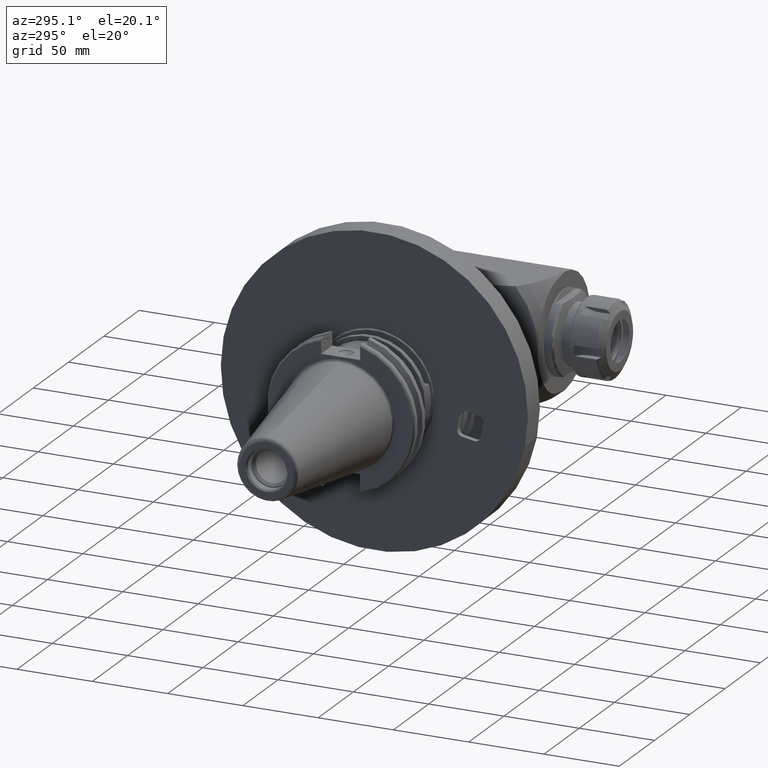
[diagram: clean part render]
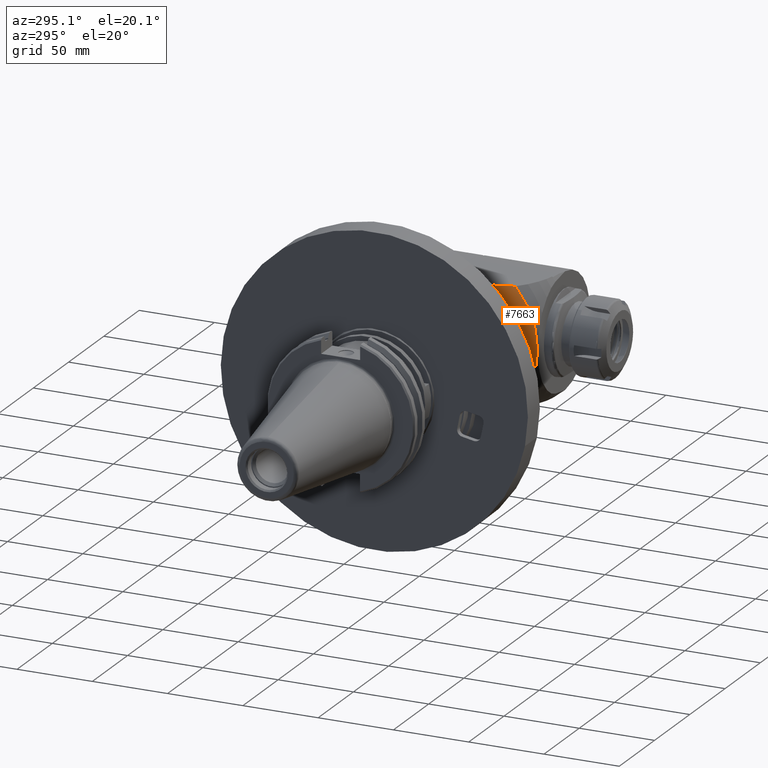
[diagram: same view with one face highlighted and labeled with its STEP entity id]
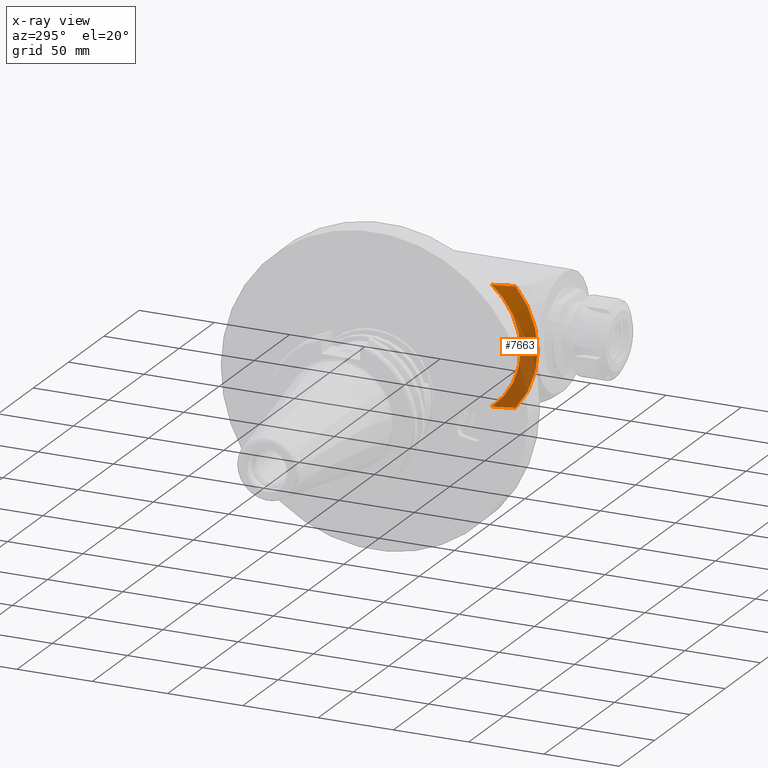
[diagram: x-ray of the same camera — body ghosted, the highlighted face saturated]
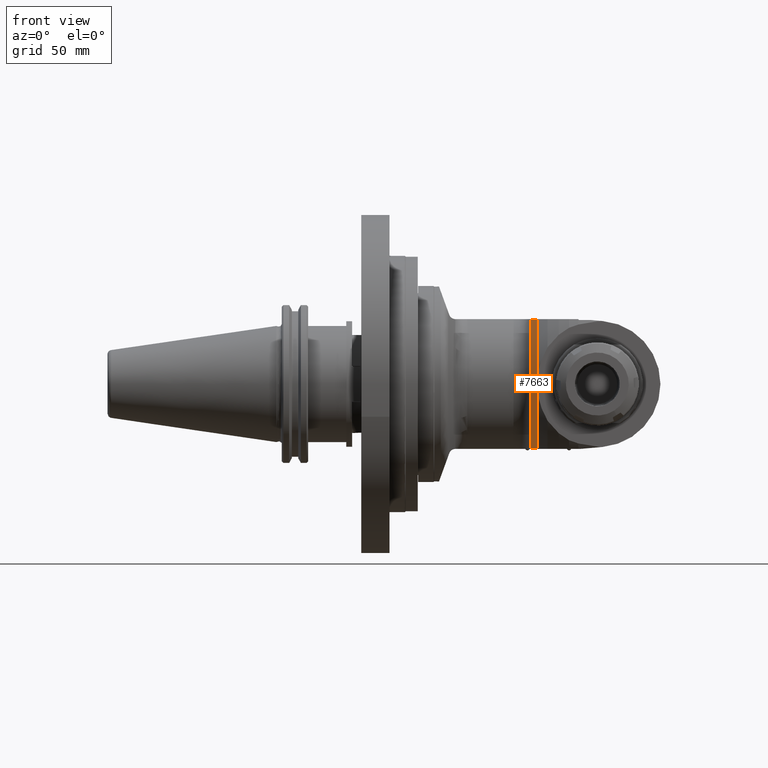
[diagram: same view with one face highlighted and labeled with its STEP entity id]
A machine part, auxiliary view. The second image highlights one B-rep face of the part: STEP entity #7663.
The next image is the same camera in x-ray: the body ghosted, the highlighted face saturated — about 53% of this face is hidden behind the body in this view.
A second angle (front view) of the same face is appended — the face is thin or edge-on in the first view.
In plain terms, the highlighted conical surface has half-angle 68 deg.
Its self-contained STEP definition (entity closure, byte-faithful):
#363=CONICAL_SURFACE('',#8274,54.18966373621,1.18682389135614);
#521=FACE_OUTER_BOUND('',#939,.T.);
#939=EDGE_LOOP('',(#5581,#5582,#5583,#5584,#5585));
#1439=CIRCLE('',#8273,49.37932747243);
#1440=CIRCLE('',#8275,59.);
#1441=CIRCLE('',#8276,59.);
#2902=(
BOUNDED_CURVE()
B_SPLINE_CURVE(2,(#11601,#11602,#11603),.UNSPECIFIED.,.F.,.F.)
B_SPLINE_CURVE_WITH_KNOTS((3,3),(4.52334173128766,6.36262635387407),
 .UNSPECIFIED.)
CURVE()
GEOMETRIC_REPRESENTATION_ITEM()
RATIONAL_B_SPLINE_CURVE((1.65245227205287,1.75473892938788,1.83233259821975))
REPRESENTATION_ITEM('')
);
#2924=(
BOUNDED_CURVE()
B_SPLINE_CURVE(2,(#11978,#11979,#11980),.UNSPECIFIED.,.F.,.F.)
B_SPLINE_CURVE_WITH_KNOTS((3,3),(18.5610515989546,20.4507038026333),
 .UNSPECIFIED.)
CURVE()
GEOMETRIC_REPRESENTATION_ITEM()
RATIONAL_B_SPLINE_CURVE((1.88075550848695,1.80111127784169,1.6961214990217))
REPRESENTATION_ITEM('')
);
#3170=VERTEX_POINT('',#11583);
#3171=VERTEX_POINT('',#11600);
#3227=VERTEX_POINT('',#11973);
#3228=VERTEX_POINT('',#11977);
#3238=VERTEX_POINT('',#12018);
#4095=EDGE_CURVE('',#3171,#3170,#2902,.T.);
#4162=EDGE_CURVE('',#3228,#3227,#2924,.T.);
#4173=EDGE_CURVE('',#3228,#3170,#1439,.T.);
#4174=EDGE_CURVE('',#3238,#3227,#1440,.T.);
#4175=EDGE_CURVE('',#3171,#3238,#1441,.T.);
#5581=ORIENTED_EDGE('',*,*,#4173,.F.);
#5582=ORIENTED_EDGE('',*,*,#4162,.T.);
#5583=ORIENTED_EDGE('',*,*,#4174,.F.);
#5584=ORIENTED_EDGE('',*,*,#4175,.F.);
#5585=ORIENTED_EDGE('',*,*,#4095,.T.);
#7663=ADVANCED_FACE('',(#521),#363,.T.);
#8273=AXIS2_PLACEMENT_3D('',#12016,#9427,#9428);
#8274=AXIS2_PLACEMENT_3D('',#12017,#9429,#9430);
#8275=AXIS2_PLACEMENT_3D('',#12019,#9431,#9432);
#8276=AXIS2_PLACEMENT_3D('',#12020,#9433,#9434);
#9427=DIRECTION('center_axis',(-1.,0.,0.));
#9428=DIRECTION('ref_axis',(0.,-0.613359057199422,-0.789804195324028));
#9429=DIRECTION('center_axis',(1.,0.,0.));
#9430=DIRECTION('ref_axis',(0.,-1.,3.04124537373314E-12));
#9431=DIRECTION('center_axis',(1.,0.,0.));
#9432=DIRECTION('ref_axis',(0.,-1.,3.229604763914E-14));
#9433=DIRECTION('center_axis',(1.,0.,0.));
#9434=DIRECTION('ref_axis',(0.,-0.750372100090502,0.661015666535802));
#11583=CARTESIAN_POINT('',(-40.22057128503,-30.28725774363,39.));
#11600=CARTESIAN_POINT('',(-36.3335672407487,-44.2718872982791,38.999999986593));
#11601=CARTESIAN_POINT('Ctrl Pts',(-36.3335672554206,-44.2718873027272,
39.));
#11602=CARTESIAN_POINT('Ctrl Pts',(-38.6416007534224,-36.6588750840502,
39.));
#11603=CARTESIAN_POINT('Ctrl Pts',(-40.2205712851289,-30.2872577432498,
39.));
#11973=CARTESIAN_POINT('',(-36.3335672407487,-44.2718872982792,-38.999999986593));
#11977=CARTESIAN_POINT('',(-40.22057128503,-30.28725774363,-39.));
#11978=CARTESIAN_POINT('Ctrl Pts',(-40.2205712848577,-30.2872577443441,
-39.));
#11979=CARTESIAN_POINT('Ctrl Pts',(-38.6416007532275,-36.6588750846931,
-39.));
#11980=CARTESIAN_POINT('Ctrl Pts',(-36.3335672554206,-44.2718873027273,
-39.));
#12016=CARTESIAN_POINT('Origin',(-40.22057128503,0.,0.));
#12017=CARTESIAN_POINT('Origin',(-38.27706927938,0.,0.));
#12018=CARTESIAN_POINT('',(-36.33356727372,-59.,5.109128986719E-14));
#12019=CARTESIAN_POINT('Origin',(-36.33356727372,0.,0.));
#12020=CARTESIAN_POINT('Origin',(-36.33356727372,0.,0.));